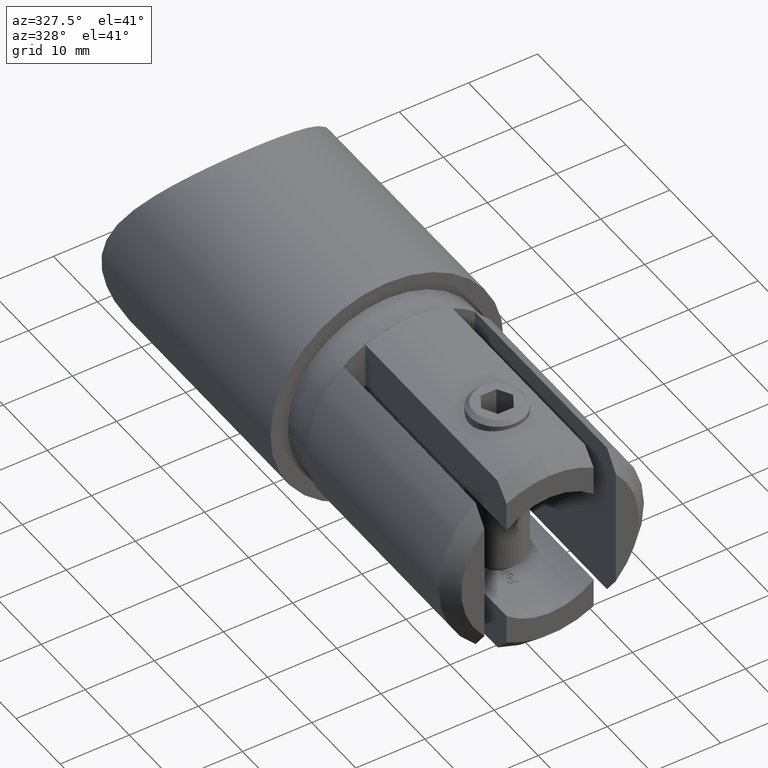
[diagram: clean part render]
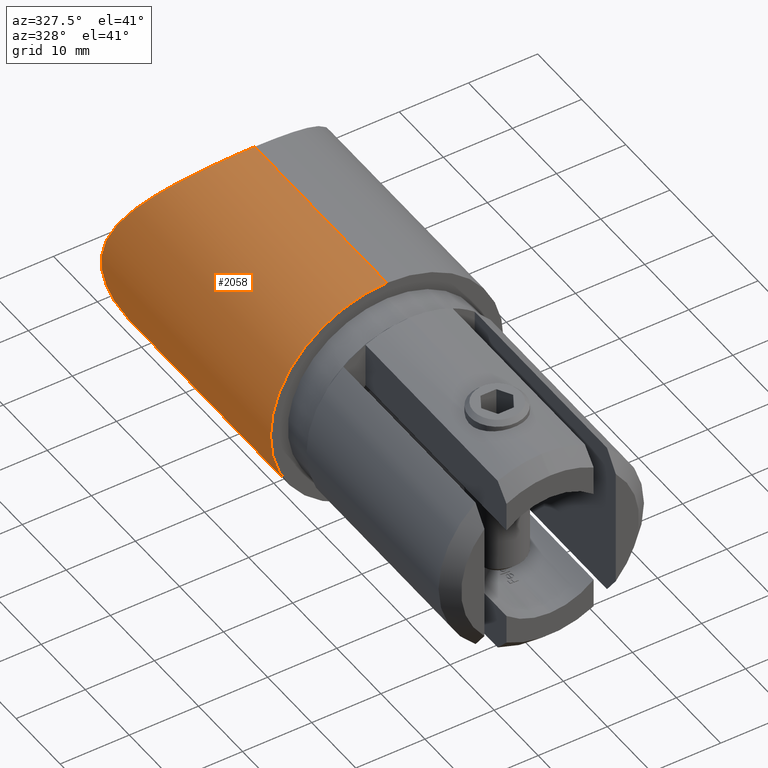
[diagram: same view with one face highlighted and labeled with its STEP entity id]
A machine part, auxiliary view. The second image highlights one B-rep face of the part: STEP entity #2058.
In plain terms, the highlighted cylindrical surface (partial cylindrical patch) has radius 16.85 mm, axis along (-0, -1, -0).
Its self-contained STEP definition (entity closure, byte-faithful):
#26 = B_SPLINE_CURVE_WITH_KNOTS ( 'NONE', 3,
 ( #1691, #11226, #594, #13445, #4705, #6943, #8301, #1335, #9364, #1745, #13493, #10220, #7911, #6892, #554, #4652, #12285, #264, #3936, #314, #3609, #6798, #219, #10453, #8251, #11555, #1436, #12428, #9118, #7960, #2472, #10125, #3563, #10176, #3662, #11271, #12386, #11320, #691, #1990, #6327, #7316, #10686, #9650, #640, #8445, #9500, #5040, #11695, #14020, #12908, #1883, #11648, #7421, #2945, #6192, #13875, #12858, #4194, #1792, #845, #10636, #3094, #6275 ),
 .UNSPECIFIED., .F., .F.,
 ( 4, 2, 2, 2, 2, 2, 2, 2, 2, 2, 2, 2, 2, 2, 2, 2, 2, 2, 2, 2, 2, 2, 2, 2, 2, 2, 2, 2, 2, 2, 2, 4 ),
 ( 0.05577927216475227200, 0.05751660887741473500, 0.05838527723374596600, 0.05925394559007719800, 0.06099128230273966100, 0.06272861901540212300, 0.06620329244072704900, 0.06794062915338949800, 0.06967796586605196100, 0.07141530257871442400, 0.07315263929137688600, 0.07662731271670179800, 0.07836464942936426100, 0.08010198614202671000, 0.08183932285468917300, 0.08270799121102040400, 0.08357665956735163500, 0.08531399628001409800, 0.08618266463634533000, 0.08705133299267656100, 0.09052600641800148700, 0.09226334313066396300, 0.09400067984332644000, 0.09747535326865136600, 0.09921268998131382900, 0.1009500266939763100, 0.1044247001193012400, 0.1061620368319637100, 0.1078993735446261800, 0.1096367102572886600, 0.1105053786136198900, 0.1113740469699511200 ),
 .UNSPECIFIED. ) ;
#56 = EDGE_CURVE ( 'NONE', #2814, #5144, #12674, .T. ) ;
#219 = CARTESIAN_POINT ( 'NONE',  ( -15.07858875039267900, 36.32753956492487600, 7.595533365079271300 ) ) ;
#264 = CARTESIAN_POINT ( 'NONE',  ( -12.38019880168776700, 34.00789462291642500, 11.44234393266416400 ) ) ;
#314 = CARTESIAN_POINT ( 'NONE',  ( -13.38914245223779200, 34.78688488340881700, 10.24336787797334500 ) ) ;
#554 = CARTESIAN_POINT ( 'NONE',  ( -10.44769128653200100, 32.76205750789350900, 13.23065700364486800 ) ) ;
#594 = CARTESIAN_POINT ( 'NONE',  ( -1.160668226172880000, 30.02385197671222600, 16.82016206656913200 ) ) ;
#640 = CARTESIAN_POINT ( 'NONE',  ( -14.28652829886804400, 35.56759853504206600, -8.949259216742014200 ) ) ;
#691 = CARTESIAN_POINT ( 'NONE',  ( -16.55393305591616500, 38.01619320509122000, -3.157705832934832600 ) ) ;
#845 = CARTESIAN_POINT ( 'NONE',  ( -1.180692792869772400, 30.03099493554891500, -16.81117371851755500 ) ) ;
#1335 = CARTESIAN_POINT ( 'NONE',  ( -4.027528344848584600, 30.38009674730163600, 16.37168577142710300 ) ) ;
#1436 = CARTESIAN_POINT ( 'NONE',  ( -16.37191033803680900, 37.78813601284371500, 4.025667566525236800 ) ) ;
#1456 = CARTESIAN_POINT ( 'NONE',  ( 0.0000000000000000000, 0.0000000000000000000, 0.0000000000000000000 ) ) ;
#1502 = ORIENTED_EDGE ( 'NONE', *, *, #13598, .T. ) ;
#1672 = ORIENTED_EDGE ( 'NONE', *, *, #12840, .T. ) ;
#1691 = CARTESIAN_POINT ( 'NONE',  ( 2.063626353805236100E-015, 30.00000000000000000, 16.85000000000000100 ) ) ;
#1745 = CARTESIAN_POINT ( 'NONE',  ( -5.659796236803544800, 30.76561767535218600, 15.88115359653770400 ) ) ;
#1792 = CARTESIAN_POINT ( 'NONE',  ( -1.475361220266470300, 30.04959349068010300, -16.78786652023756800 ) ) ;
#1883 = CARTESIAN_POINT ( 'NONE',  ( -8.711827978055620000, 31.85719441638210700, -14.46259596327466700 ) ) ;
#1990 = CARTESIAN_POINT ( 'NONE',  ( -16.26313487010124300, 37.65159332645775700, -4.553442230946416200 ) ) ;
#2058 = ADVANCED_FACE ( 'NONE', ( #12057 ), #13265, .T. ) ;
#2208 = DIRECTION ( 'NONE',  ( -0.0000000000000000000, -1.000000000000000000, -0.0000000000000000000 ) ) ;
#2428 = VERTEX_POINT ( 'NONE', #3484 ) ;
#2472 = CARTESIAN_POINT ( 'NONE',  ( -16.81029250039008400, 38.34755934998061400, 1.192912478455625500 ) ) ;
#2620 = DIRECTION ( 'NONE',  ( 0.0000000000000000000, 0.0000000000000000000, -1.000000000000000000 ) ) ;
#2785 = ORIENTED_EDGE ( 'NONE', *, *, #56, .F. ) ;
#2814 = VERTEX_POINT ( 'NONE', #3995 ) ;
#2945 = CARTESIAN_POINT ( 'NONE',  ( -5.692449510956470800, 30.77466911030614600, -15.86957028526129000 ) ) ;
#3094 = CARTESIAN_POINT ( 'NONE',  ( -0.2944121832880085600, 30.00000000000000400, -16.85000000000000100 ) ) ;
#3484 = CARTESIAN_POINT ( 'NONE',  ( -4.929448998416318200E-016, 30.00000000000000000, -16.85000000000000100 ) ) ;
#3563 = CARTESIAN_POINT ( 'NONE',  ( -16.84973146252883000, 38.39974213529810500, 0.3087970696074783300 ) ) ;
#3609 = CARTESIAN_POINT ( 'NONE',  ( -13.70274287365537400, 35.05016855858811200, 9.819992349267378600 ) ) ;
#3662 = CARTESIAN_POINT ( 'NONE',  ( -16.82040032458751700, 38.36054603766913100, -1.153836843191367000 ) ) ;
#3926 = CIRCLE ( 'NONE', #14164, 16.85000000000000100 ) ;
#3936 = CARTESIAN_POINT ( 'NONE',  ( -12.72848813503912700, 34.26632986512921500, 11.05356552818955500 ) ) ;
#3995 = CARTESIAN_POINT ( 'NONE',  ( 2.063626353805236100E-015, 30.00000000000000000, 16.85000000000000100 ) ) ;
#4194 = CARTESIAN_POINT ( 'NONE',  ( -2.353592546551934300, 30.12344590080752100, -16.69520033575916400 ) ) ;
#4652 = CARTESIAN_POINT ( 'NONE',  ( -11.26012609164206400, 33.24939921283311200, 12.54647752825849100 ) ) ;
#4705 = CARTESIAN_POINT ( 'NONE',  ( -2.325041708953491600, 30.12649489303504400, 16.69134995942732800 ) ) ;
#5040 = CARTESIAN_POINT ( 'NONE',  ( -11.65409220291086700, 33.50472250578032900, -12.18121766811734700 ) ) ;
#5144 = VERTEX_POINT ( 'NONE', #13990 ) ;
#5445 = DIRECTION ( 'NONE',  ( -0.0000000000000000000, -1.000000000000000000, -0.0000000000000000000 ) ) ;
#5620 = CARTESIAN_POINT ( 'NONE',  ( 2.063529856563290200E-015, 46.85000000000000100, 16.85000000000000100 ) ) ;
#6192 = CARTESIAN_POINT ( 'NONE',  ( -4.607261051775797300, 30.50154853366104700, -16.21790331930815300 ) ) ;
#6275 = CARTESIAN_POINT ( 'NONE',  ( -4.929448998416318200E-016, 30.00000000000000000, -16.85000000000000100 ) ) ;
#6327 = CARTESIAN_POINT ( 'NONE',  ( -15.93019942907955600, 37.24989041750217200, -5.595927497539339200 ) ) ;
#6543 = ORIENTED_EDGE ( 'NONE', *, *, #9740, .T. ) ;
#6798 = CARTESIAN_POINT ( 'NONE',  ( -14.57879546484632600, 35.82656786995264800, 8.513569803490657500 ) ) ;
#6892 = CARTESIAN_POINT ( 'NONE',  ( -10.01920548788206800, 32.52383561059411200, 13.55836620536894300 ) ) ;
#6943 = CARTESIAN_POINT ( 'NONE',  ( -2.899331002320690000, 30.19814326048423300, 16.60123074218987300 ) ) ;
#7316 = CARTESIAN_POINT ( 'NONE',  ( -15.29763992226775400, 36.56421965861476100, -7.084878433017094000 ) ) ;
#7421 = CARTESIAN_POINT ( 'NONE',  ( -6.228116300725036000, 30.93285942263153000, -15.66672538129450800 ) ) ;
#7911 = CARTESIAN_POINT ( 'NONE',  ( -8.686933792056398900, 31.84537381783335200, 14.47842437427551200 ) ) ;
#7960 = CARTESIAN_POINT ( 'NONE',  ( -16.78705110906867400, 38.31690852543609100, 1.483692210709741400 ) ) ;
#8201 = DIRECTION ( 'NONE',  ( -0.0000000000000000000, -1.000000000000000000, -0.0000000000000000000 ) ) ;
#8251 = CARTESIAN_POINT ( 'NONE',  ( -15.89403586825736000, 37.21996338744450100, 5.621787813899143100 ) ) ;
#8301 = CARTESIAN_POINT ( 'NONE',  ( -3.183518015547468900, 30.23959355891839000, 16.54902891218731800 ) ) ;
#8445 = CARTESIAN_POINT ( 'NONE',  ( -13.41593589516612000, 34.79588369555921900, -10.24800905093229300 ) ) ;
#8527 = VECTOR ( 'NONE', #2208, 1000.000000000000000 ) ;
#9118 = CARTESIAN_POINT ( 'NONE',  ( -16.69566389351615100, 38.19748638842212100, 2.347981518913584900 ) ) ;
#9131 = DIRECTION ( 'NONE',  ( 0.0000000000000000000, 0.0000000000000000000, 1.000000000000000000 ) ) ;
#9364 = CARTESIAN_POINT ( 'NONE',  ( -4.578821928732644200, 30.49527268532674300, 16.22586585498336800 ) ) ;
#9366 = CARTESIAN_POINT ( 'NONE',  ( 0.0000000000000000000, 46.85000000000000100, 0.0000000000000000000 ) ) ;
#9423 = VECTOR ( 'NONE', #5445, 1000.000000000000000 ) ;
#9500 = CARTESIAN_POINT ( 'NONE',  ( -12.76116821651620400, 34.27236777083778900, -11.05372342506297800 ) ) ;
#9650 = CARTESIAN_POINT ( 'NONE',  ( -14.55794734501889200, 35.82250201908814100, -8.501131346462845100 ) ) ;
#9740 = EDGE_CURVE ( 'NONE', #9771, #5144, #3926, .T. ) ;
#9771 = VERTEX_POINT ( 'NONE', #11335 ) ;
#10125 = CARTESIAN_POINT ( 'NONE',  ( -16.84168036084366100, 38.38904098409129500, 0.6056209648776178500 ) ) ;
#10176 = CARTESIAN_POINT ( 'NONE',  ( -16.85051699616002500, 38.40078436598748400, -0.5725390119895456000 ) ) ;
#10220 = CARTESIAN_POINT ( 'NONE',  ( -7.734408160861981700, 31.43875454159646700, 15.01190319947881100 ) ) ;
#10453 = CARTESIAN_POINT ( 'NONE',  ( -15.70566063852958600, 37.00613323428682800, 6.126833632327356200 ) ) ;
#10636 = CARTESIAN_POINT ( 'NONE',  ( -0.5912643637428974800, 30.00622327962183500, -16.84220899162214700 ) ) ;
#10686 = CARTESIAN_POINT ( 'NONE',  ( -15.06314687483475700, 36.32037274880504200, -7.569984894127049600 ) ) ;
#10956 = CARTESIAN_POINT ( 'NONE',  ( 0.0000000000000000000, 46.85000000000000100, -16.85000000000000100 ) ) ;
#11226 = CARTESIAN_POINT ( 'NONE',  ( -0.5797560825822277700, 30.00000000000000000, 16.85000000000000100 ) ) ;
#11271 = CARTESIAN_POINT ( 'NONE',  ( -16.73133700760226400, 38.24407722011088900, -2.017061866443655500 ) ) ;
#11320 = CARTESIAN_POINT ( 'NONE',  ( -16.60574152598589800, 38.08214508616087100, -2.873147520169848900 ) ) ;
#11335 = CARTESIAN_POINT ( 'NONE',  ( 0.0000000000000000000, 0.0000000000000000000, -16.85000000000000100 ) ) ;
#11555 = CARTESIAN_POINT ( 'NONE',  ( -16.22675236455261000, 37.61043735894973100, 4.573552460117043400 ) ) ;
#11648 = CARTESIAN_POINT ( 'NONE',  ( -7.766875716986424600, 31.45165125289965100, -14.99503280789690900 ) ) ;
#11695 = CARTESIAN_POINT ( 'NONE',  ( -11.26267956137714600, 33.25101811771975900, -12.54417327363496100 ) ) ;
#12057 = FACE_OUTER_BOUND ( 'NONE', #13258, .T. ) ;
#12285 = CARTESIAN_POINT ( 'NONE',  ( -11.64601402414532100, 33.49943904473352800, 12.18880282850199100 ) ) ;
#12386 = CARTESIAN_POINT ( 'NONE',  ( -16.69431642548649500, 38.19593098006097200, -2.303351337994828300 ) ) ;
#12428 = CARTESIAN_POINT ( 'NONE',  ( -16.60593978442220100, 38.08124680296118200, 2.913453508987873700 ) ) ;
#12492 = DIRECTION ( 'NONE',  ( 0.0000000000000000000, 1.000000000000000000, 0.0000000000000000000 ) ) ;
#12626 = AXIS2_PLACEMENT_3D ( 'NONE', #9366, #8201, #2620 ) ;
#12674 = LINE ( 'NONE', #5620, #9423 ) ;
#12840 = EDGE_CURVE ( 'NONE', #2814, #2428, #26, .T. ) ;
#12858 = CARTESIAN_POINT ( 'NONE',  ( -2.927642857497274600, 30.19628544321961200, -16.60370697395172700 ) ) ;
#12908 = CARTESIAN_POINT ( 'NONE',  ( -10.02878524246689900, 32.52915336010457300, -13.55105157319970900 ) ) ;
#13258 = EDGE_LOOP ( 'NONE', ( #2785, #1672, #1502, #6543 ) ) ;
#13265 = CYLINDRICAL_SURFACE ( 'NONE', #12626, 16.85000000000000100 ) ;
#13445 = CARTESIAN_POINT ( 'NONE',  ( -2.033816131599577700, 30.09621740017904700, 16.72936692203474300 ) ) ;
#13493 = CARTESIAN_POINT ( 'NONE',  ( -6.192339079109617100, 30.92182249624777100, 15.68092435243103500 ) ) ;
#13598 = EDGE_CURVE ( 'NONE', #2428, #9771, #13866, .T. ) ;
#13866 = LINE ( 'NONE', #10956, #8527 ) ;
#13875 = CARTESIAN_POINT ( 'NONE',  ( -4.054480096414276400, 30.38532968835400200, -16.36506550936134400 ) ) ;
#13990 = CARTESIAN_POINT ( 'NONE',  ( 2.063529856563290200E-015, 0.0000000000000000000, 16.85000000000000100 ) ) ;
#14020 = CARTESIAN_POINT ( 'NONE',  ( -10.45083378027795500, 32.76385595515697700, -13.22816341440645400 ) ) ;
#14164 = AXIS2_PLACEMENT_3D ( 'NONE', #1456, #12492, #9131 ) ;